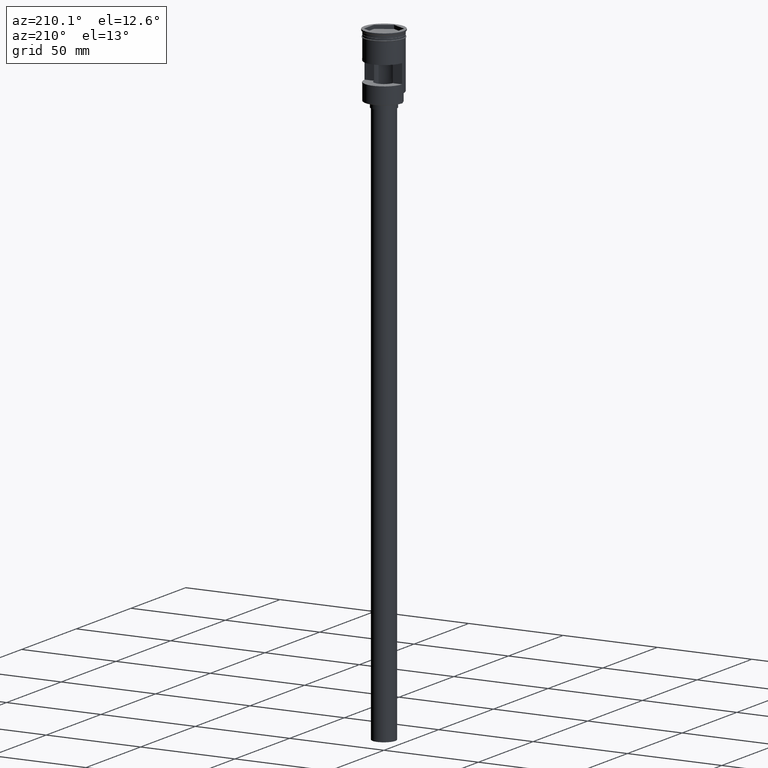
[diagram: clean part render]
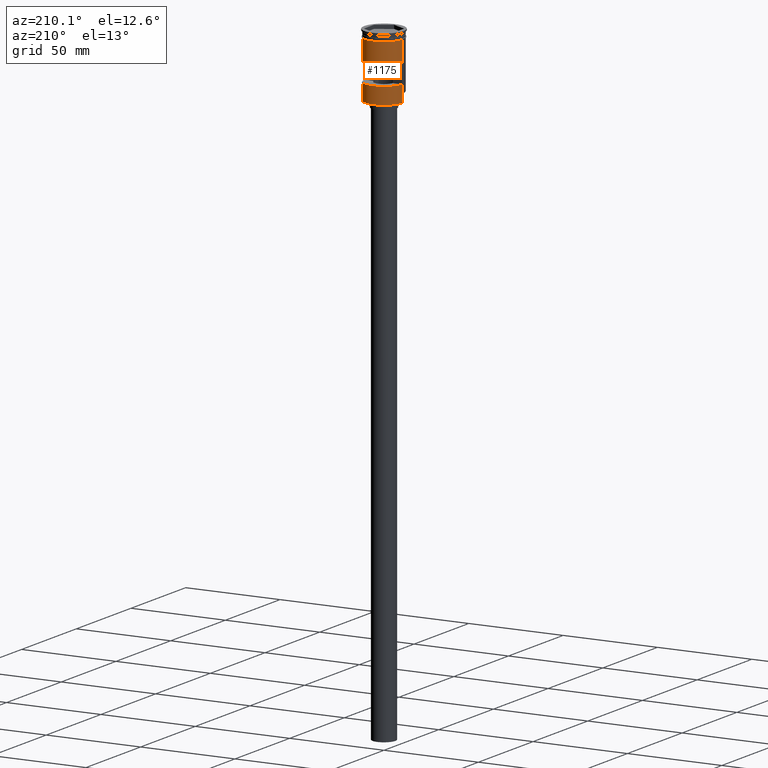
[diagram: same view with one face highlighted and labeled with its STEP entity id]
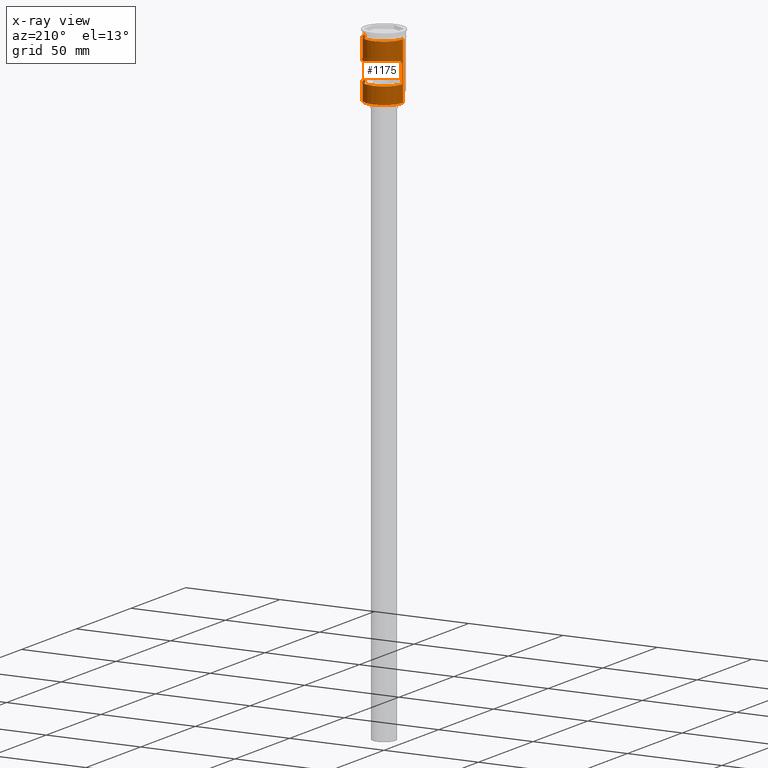
[diagram: x-ray of the same camera — body ghosted, the highlighted face saturated]
A machine part, auxiliary view. The second image highlights one B-rep face of the part: STEP entity #1175.
The next image is the same camera in x-ray: the body ghosted, the highlighted face saturated — about 0% of this face is hidden behind the body in this view.
In plain terms, the highlighted cylindrical surface (edge-blend (fillet) strip) has radius 10 mm, axis along (-0, -0, 1).
Its self-contained STEP definition (entity closure, byte-faithful):
#13 = VECTOR ( 'NONE', #562, 1000.000000000000000 ) ;
#28 = DIRECTION ( 'NONE',  ( -0.000000000000000000, -0.000000000000000000, 1.000000000000000000 ) ) ;
#34 = EDGE_CURVE ( 'NONE', #1188, #1462, #1370, .T. ) ;
#36 = CARTESIAN_POINT ( 'NONE',  ( 0.000000000000000000, 0.000000000000000000, -25.00000000000000000 ) ) ;
#58 = CARTESIAN_POINT ( 'NONE',  ( -9.999999999999991118, 0.000000000000000000, -33.99999999999999289 ) ) ;
#73 = VERTEX_POINT ( 'NONE', #541 ) ;
#103 = AXIS2_PLACEMENT_3D ( 'NONE', #839, #980, #1102 ) ;
#109 = ORIENTED_EDGE ( 'NONE', *, *, #34, .F. ) ;
#124 = CYLINDRICAL_SURFACE ( 'NONE', #103, 9.999999999999994671 ) ;
#160 = DIRECTION ( 'NONE',  ( -0.000000000000000000, -0.000000000000000000, 1.000000000000000000 ) ) ;
#168 = EDGE_CURVE ( 'NONE', #1166, #1121, #1547, .T. ) ;
#176 = DIRECTION ( 'NONE',  ( 0.000000000000000000, 0.000000000000000000, 1.000000000000000000 ) ) ;
#213 = ORIENTED_EDGE ( 'NONE', *, *, #1459, .F. ) ;
#288 = AXIS2_PLACEMENT_3D ( 'NONE', #697, #1210, #941 ) ;
#294 = EDGE_CURVE ( 'NONE', #1462, #1323, #567, .T. ) ;
#307 = CARTESIAN_POINT ( 'NONE',  ( 9.981983770774217390, 0.5999999999999998668, 0.000000000000000000 ) ) ;
#330 = ORIENTED_EDGE ( 'NONE', *, *, #1587, .T. ) ;
#353 = CARTESIAN_POINT ( 'NONE',  ( -9.981983770774217390, 0.6000000000000000888, -15.00000000000000000 ) ) ;
#376 = CARTESIAN_POINT ( 'NONE',  ( 9.981983770774210285, 0.6000000000000000888, -25.00000000000000000 ) ) ;
#386 = VECTOR ( 'NONE', #667, 1000.000000000000000 ) ;
#408 = LINE ( 'NONE', #1049, #660 ) ;
#421 = LINE ( 'NONE', #1189, #386 ) ;
#457 = CARTESIAN_POINT ( 'NONE',  ( -10.00000000000000000, 1.224646799147353256E-15, -3.999999999999996447 ) ) ;
#511 = CARTESIAN_POINT ( 'NONE',  ( -9.999999999999991118, 0.000000000000000000, -33.80000000000001137 ) ) ;
#541 = CARTESIAN_POINT ( 'NONE',  ( -9.999999999999991118, 0.000000000000000000, -29.30000000000002913 ) ) ;
#562 = DIRECTION ( 'NONE',  ( -0.000000000000000000, -0.000000000000000000, 1.000000000000000000 ) ) ;
#567 = LINE ( 'NONE', #598, #1545 ) ;
#571 = EDGE_CURVE ( 'NONE', #759, #1166, #408, .T. ) ;
#575 = ORIENTED_EDGE ( 'NONE', *, *, #757, .F. ) ;
#576 = FACE_OUTER_BOUND ( 'NONE', #1402, .T. ) ;
#587 = EDGE_CURVE ( 'NONE', #1326, #759, #1038, .T. ) ;
#590 = DIRECTION ( 'NONE',  ( -0.000000000000000000, -0.000000000000000000, 1.000000000000000000 ) ) ;
#598 = CARTESIAN_POINT ( 'NONE',  ( 9.999999999999994671, 0.000000000000000000, 0.000000000000000000 ) ) ;
#607 = FACE_BOUND ( 'NONE', #1572, .T. ) ;
#645 = CARTESIAN_POINT ( 'NONE',  ( 9.999999999999991118, 1.224646799147352270E-15, -33.99999999999999289 ) ) ;
#660 = VECTOR ( 'NONE', #160, 1000.000000000000000 ) ;
#661 = DIRECTION ( 'NONE',  ( -1.000000000000000000, -8.881784197001250351E-16, 0.000000000000000000 ) ) ;
#667 = DIRECTION ( 'NONE',  ( -0.000000000000000000, -0.000000000000000000, 1.000000000000000000 ) ) ;
#673 = ORIENTED_EDGE ( 'NONE', *, *, #1052, .T. ) ;
#697 = CARTESIAN_POINT ( 'NONE',  ( 0.000000000000000000, 0.000000000000000000, -3.999999999999996447 ) ) ;
#701 = CARTESIAN_POINT ( 'NONE',  ( -9.981983770774217390, 0.5999999999999998668, -25.00000000000000000 ) ) ;
#719 = VERTEX_POINT ( 'NONE', #457 ) ;
#723 = ORIENTED_EDGE ( 'NONE', *, *, #1016, .T. ) ;
#757 = EDGE_CURVE ( 'NONE', #1323, #719, #1516, .T. ) ;
#759 = VERTEX_POINT ( 'NONE', #701 ) ;
#808 = ORIENTED_EDGE ( 'NONE', *, *, #294, .F. ) ;
#810 = DIRECTION ( 'NONE',  ( 0.000000000000000000, 0.000000000000000000, -1.000000000000000000 ) ) ;
#821 = CIRCLE ( 'NONE', #955, 9.999999999999994671 ) ;
#839 = CARTESIAN_POINT ( 'NONE',  ( 0.000000000000000000, 0.000000000000000000, 0.000000000000000000 ) ) ;
#857 = ORIENTED_EDGE ( 'NONE', *, *, #587, .F. ) ;
#935 = CARTESIAN_POINT ( 'NONE',  ( 0.000000000000000000, 0.000000000000000000, -15.00000000000000000 ) ) ;
#941 = DIRECTION ( 'NONE',  ( 1.000000000000000000, 0.000000000000000000, 0.000000000000000000 ) ) ;
#955 = AXIS2_PLACEMENT_3D ( 'NONE', #1076, #1100, #1564 ) ;
#979 = VECTOR ( 'NONE', #28, 1000.000000000000000 ) ;
#980 = DIRECTION ( 'NONE',  ( -0.000000000000000000, -0.000000000000000000, 1.000000000000000000 ) ) ;
#1016 = EDGE_CURVE ( 'NONE', #73, #719, #421, .T. ) ;
#1038 = CIRCLE ( 'NONE', #1450, 9.999999999999994671 ) ;
#1049 = CARTESIAN_POINT ( 'NONE',  ( -9.981983770774217390, 0.5999999999999998668, 0.000000000000000000 ) ) ;
#1052 = EDGE_CURVE ( 'NONE', #1339, #73, #1173, .T. ) ;
#1053 = CARTESIAN_POINT ( 'NONE',  ( 9.999999999999994671, 1.224646799147352665E-15, -29.30000000000002913 ) ) ;
#1069 = DIRECTION ( 'NONE',  ( 0.000000000000000000, -1.000000000000000000, -1.734723475976808080E-16 ) ) ;
#1076 = CARTESIAN_POINT ( 'NONE',  ( 0.000000000000000000, 0.000000000000000000, -33.80000000000001137 ) ) ;
#1100 = DIRECTION ( 'NONE',  ( 0.000000000000000000, 0.000000000000000000, 1.000000000000000000 ) ) ;
#1102 = DIRECTION ( 'NONE',  ( 1.000000000000000000, 0.000000000000000000, 0.000000000000000000 ) ) ;
#1114 = VECTOR ( 'NONE', #810, 1000.000000000000000 ) ;
#1121 = VERTEX_POINT ( 'NONE', #1330 ) ;
#1166 = VERTEX_POINT ( 'NONE', #353 ) ;
#1173 = LINE ( 'NONE', #58, #13 ) ;
#1175 = ADVANCED_FACE ( 'NONE', ( #607, #576 ), #124, .T. ) ;
#1188 = VERTEX_POINT ( 'NONE', #1213 ) ;
#1189 = CARTESIAN_POINT ( 'NONE',  ( -9.999999999999994671, 1.224646799147352665E-15, 0.000000000000000000 ) ) ;
#1210 = DIRECTION ( 'NONE',  ( -0.000000000000000000, -0.000000000000000000, 1.000000000000000000 ) ) ;
#1213 = CARTESIAN_POINT ( 'NONE',  ( 9.999999999999991118, 1.224646799147352270E-15, -33.80000000000001137 ) ) ;
#1323 = VERTEX_POINT ( 'NONE', #1376 ) ;
#1326 = VERTEX_POINT ( 'NONE', #376 ) ;
#1330 = CARTESIAN_POINT ( 'NONE',  ( 9.981983770774210285, 0.6000000000000000888, -15.00000000000000000 ) ) ;
#1339 = VERTEX_POINT ( 'NONE', #511 ) ;
#1370 = LINE ( 'NONE', #645, #979 ) ;
#1372 = ORIENTED_EDGE ( 'NONE', *, *, #168, .F. ) ;
#1376 = CARTESIAN_POINT ( 'NONE',  ( 9.999999999999998224, 0.000000000000000000, -3.999999999999996447 ) ) ;
#1402 = EDGE_LOOP ( 'NONE', ( #673, #723, #575, #808, #109, #330 ) ) ;
#1426 = LINE ( 'NONE', #307, #1114 ) ;
#1432 = DIRECTION ( 'NONE',  ( -0.000000000000000000, 1.845450506358306558E-16, -1.000000000000000000 ) ) ;
#1450 = AXIS2_PLACEMENT_3D ( 'NONE', #36, #176, #661 ) ;
#1459 = EDGE_CURVE ( 'NONE', #1121, #1326, #1426, .T. ) ;
#1462 = VERTEX_POINT ( 'NONE', #1053 ) ;
#1479 = ORIENTED_EDGE ( 'NONE', *, *, #571, .F. ) ;
#1516 = CIRCLE ( 'NONE', #288, 9.999999999999998224 ) ;
#1545 = VECTOR ( 'NONE', #590, 1000.000000000000000 ) ;
#1547 = CIRCLE ( 'NONE', #1597, 9.999999999999994671 ) ;
#1564 = DIRECTION ( 'NONE',  ( -1.000000000000000000, 0.000000000000000000, 0.000000000000000000 ) ) ;
#1572 = EDGE_LOOP ( 'NONE', ( #213, #1372, #1479, #857 ) ) ;
#1587 = EDGE_CURVE ( 'NONE', #1188, #1339, #821, .T. ) ;
#1597 = AXIS2_PLACEMENT_3D ( 'NONE', #935, #1432, #1069 ) ;